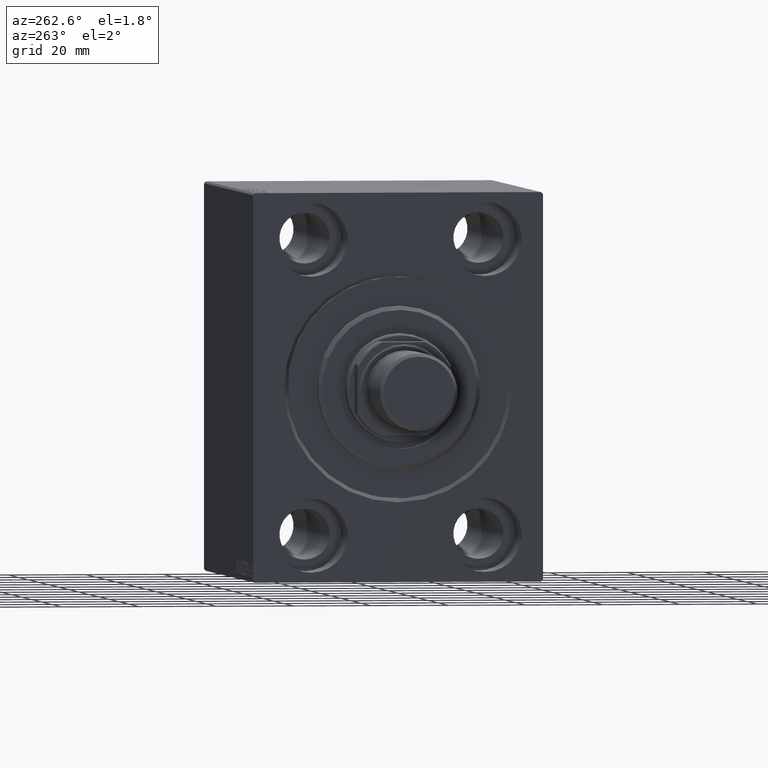
[diagram: clean part render]
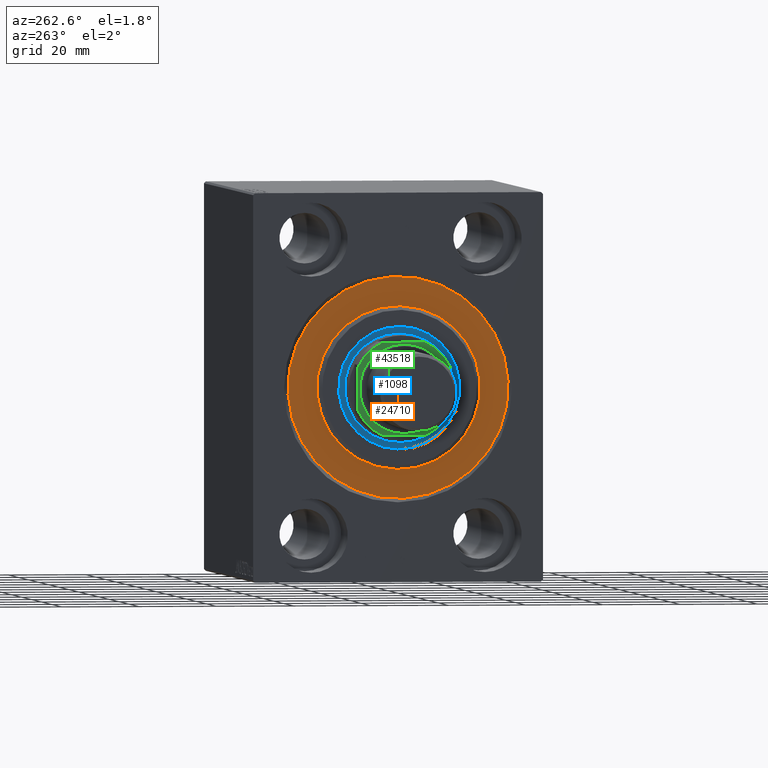
[diagram: same view with three faces highlighted in distinct colors, each labeled with its STEP entity id]
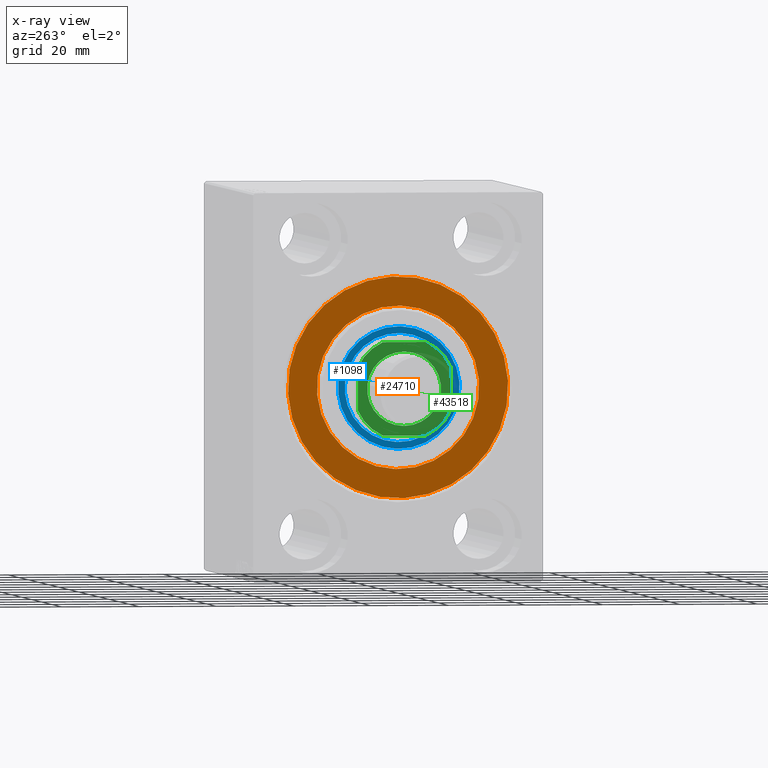
[diagram: x-ray of the same camera — body ghosted, the three highlighted faces saturated]
A machine part, auxiliary view with three faces highlighted in distinct colors.
The next image is the same camera in x-ray (body ghosted, the three faces saturated) — at least one of them is partly hidden behind the body in this view.
Their STEP definitions:

[orange] entity #24710 — the highlighted planar face has unit normal (1, 0, -0).
#1378 = ORIENTED_EDGE ( 'NONE', *, *, #22261, .F. ) ;
#1492 = CARTESIAN_POINT ( 'NONE',  ( 0.000000000000000000, 0.000000000000000000, 0.000000000000000000 ) ) ;
#1785 = CARTESIAN_POINT ( 'NONE',  ( 0.000000000000000000, 0.000000000000000000, 0.000000000000000000 ) ) ;
#3803 = DIRECTION ( 'NONE',  ( 1.000000000000000000, -0.000000000000000000, 0.000000000000000000 ) ) ;
#6787 = AXIS2_PLACEMENT_3D ( 'NONE', #22634, #22854, #22411 ) ;
#7388 = CARTESIAN_POINT ( 'NONE',  ( 0.000000000000000000, 3.490243377569956456E-15, 28.50000000000000000 ) ) ;
#8192 = FACE_OUTER_BOUND ( 'NONE', #35854, .T. ) ;
#9921 = VERTEX_POINT ( 'NONE', #31123 ) ;
#11169 = DIRECTION ( 'NONE',  ( 0.000000000000000000, 0.000000000000000000, 1.000000000000000000 ) ) ;
#11604 = AXIS2_PLACEMENT_3D ( 'NONE', #1785, #36140, #39264 ) ;
#12581 = CARTESIAN_POINT ( 'NONE',  ( 0.000000000000000000, 2.571758278209441661E-15, -21.00000000000000000 ) ) ;
#13809 = AXIS2_PLACEMENT_3D ( 'NONE', #17821, #3803, #20531 ) ;
#15079 = DIRECTION ( 'NONE',  ( -1.000000000000000000, 0.000000000000000000, 0.000000000000000000 ) ) ;
#17821 = CARTESIAN_POINT ( 'NONE',  ( 0.000000000000000000, 0.000000000000000000, 0.000000000000000000 ) ) ;
#18077 = ORIENTED_EDGE ( 'NONE', *, *, #24265, .F. ) ;
#18714 = EDGE_CURVE ( 'NONE', #42325, #39274, #41559, .T. ) ;
#18847 = CARTESIAN_POINT ( 'NONE',  ( 0.000000000000000000, 0.000000000000000000, -28.50000000000000000 ) ) ;
#20227 = AXIS2_PLACEMENT_3D ( 'NONE', #1492, #15079, #42315 ) ;
#20531 = DIRECTION ( 'NONE',  ( 0.000000000000000000, 0.000000000000000000, -1.000000000000000000 ) ) ;
#20887 = EDGE_LOOP ( 'NONE', ( #18077, #1378 ) ) ;
#22261 = EDGE_CURVE ( 'NONE', #25669, #9921, #28789, .T. ) ;
#22311 = AXIS2_PLACEMENT_3D ( 'NONE', #30578, #34371, #11169 ) ;
#22345 = CIRCLE ( 'NONE', #13809, 21.00000000000000000 ) ;
#22411 = DIRECTION ( 'NONE',  ( 0.000000000000000000, 0.000000000000000000, 1.000000000000000000 ) ) ;
#22634 = CARTESIAN_POINT ( 'NONE',  ( 0.000000000000000000, 0.000000000000000000, 0.000000000000000000 ) ) ;
#22854 = DIRECTION ( 'NONE',  ( -1.000000000000000000, 0.000000000000000000, 0.000000000000000000 ) ) ;
#24265 = EDGE_CURVE ( 'NONE', #9921, #25669, #22345, .T. ) ;
#24710 = ADVANCED_FACE ( 'NONE', ( #28907, #8192 ), #32023, .F. ) ;
#25669 = VERTEX_POINT ( 'NONE', #12581 ) ;
#27749 = EDGE_CURVE ( 'NONE', #39274, #42325, #43124, .T. ) ;
#28789 = CIRCLE ( 'NONE', #11604, 21.00000000000000000 ) ;
#28907 = FACE_BOUND ( 'NONE', #20887, .T. ) ;
#30578 = CARTESIAN_POINT ( 'NONE',  ( 0.000000000000000000, 0.000000000000000000, 0.000000000000000000 ) ) ;
#31123 = CARTESIAN_POINT ( 'NONE',  ( 0.000000000000000000, 0.000000000000000000, 21.00000000000000000 ) ) ;
#32023 = PLANE ( 'NONE',  #20227 ) ;
#32120 = ORIENTED_EDGE ( 'NONE', *, *, #18714, .F. ) ;
#34371 = DIRECTION ( 'NONE',  ( -1.000000000000000000, 0.000000000000000000, 0.000000000000000000 ) ) ;
#35854 = EDGE_LOOP ( 'NONE', ( #32120, #37057 ) ) ;
#36140 = DIRECTION ( 'NONE',  ( 1.000000000000000000, -0.000000000000000000, 0.000000000000000000 ) ) ;
#37057 = ORIENTED_EDGE ( 'NONE', *, *, #27749, .F. ) ;
#39264 = DIRECTION ( 'NONE',  ( 0.000000000000000000, 0.000000000000000000, -1.000000000000000000 ) ) ;
#39274 = VERTEX_POINT ( 'NONE', #7388 ) ;
#41559 = CIRCLE ( 'NONE', #22311, 28.50000000000000000 ) ;
#42315 = DIRECTION ( 'NONE',  ( 0.000000000000000000, 0.000000000000000000, 1.000000000000000000 ) ) ;
#42325 = VERTEX_POINT ( 'NONE', #18847 ) ;
#43124 = CIRCLE ( 'NONE', #6787, 28.50000000000000000 ) ;

[blue] entity #1098 — the highlighted planar face has unit normal (-1, 0, 0).
#1098 = ADVANCED_FACE ( 'NONE', ( #12609, #25765 ), #43619, .T. ) ;
#1303 = DIRECTION ( 'NONE',  ( 1.000000000000000000, 0.000000000000000000, 0.000000000000000000 ) ) ;
#1829 = CARTESIAN_POINT ( 'NONE',  ( 1.500000000000000000, 0.000000000000000000, 0.000000000000000000 ) ) ;
#2354 = DIRECTION ( 'NONE',  ( 0.000000000000000000, 0.000000000000000000, -1.000000000000000000 ) ) ;
#2974 = CARTESIAN_POINT ( 'NONE',  ( 1.500000000000000000, 1.928818708657080950E-15, -15.75000000000000000 ) ) ;
#3407 = AXIS2_PLACEMENT_3D ( 'NONE', #1829, #25463, #18989 ) ;
#3891 = AXIS2_PLACEMENT_3D ( 'NONE', #8479, #12261, #18502 ) ;
#5127 = ORIENTED_EDGE ( 'NONE', *, *, #6157, .F. ) ;
#6157 = EDGE_CURVE ( 'NONE', #23627, #32171, #21994, .T. ) ;
#7175 = DIRECTION ( 'NONE',  ( 0.000000000000000000, 0.000000000000000000, -1.000000000000000000 ) ) ;
#8271 = EDGE_LOOP ( 'NONE', ( #16864, #18118 ) ) ;
#8479 = CARTESIAN_POINT ( 'NONE',  ( 1.499999999999999556, 0.000000000000000000, 0.000000000000000000 ) ) ;
#10737 = CARTESIAN_POINT ( 'NONE',  ( 1.499999999999999556, 1.714505518806294835E-15, 14.00000000000000178 ) ) ;
#11163 = CIRCLE ( 'NONE', #36114, 15.75000000000000000 ) ;
#11397 = EDGE_LOOP ( 'NONE', ( #5127, #37168 ) ) ;
#12261 = DIRECTION ( 'NONE',  ( 1.000000000000000000, 0.000000000000000000, 0.000000000000000000 ) ) ;
#12609 = FACE_BOUND ( 'NONE', #11397, .T. ) ;
#13748 = CIRCLE ( 'NONE', #3891, 14.00000000000000178 ) ;
#14887 = DIRECTION ( 'NONE',  ( 0.000000000000000000, 0.000000000000000000, -1.000000000000000000 ) ) ;
#16864 = ORIENTED_EDGE ( 'NONE', *, *, #32521, .T. ) ;
#17734 = AXIS2_PLACEMENT_3D ( 'NONE', #17851, #20998, #7175 ) ;
#17851 = CARTESIAN_POINT ( 'NONE',  ( 1.499999999999999556, 0.000000000000000000, 0.000000000000000000 ) ) ;
#18118 = ORIENTED_EDGE ( 'NONE', *, *, #34536, .T. ) ;
#18502 = DIRECTION ( 'NONE',  ( 0.000000000000000000, 0.000000000000000000, -1.000000000000000000 ) ) ;
#18989 = DIRECTION ( 'NONE',  ( 0.000000000000000000, 0.000000000000000000, -1.000000000000000000 ) ) ;
#19295 = CARTESIAN_POINT ( 'NONE',  ( 1.500000000000000000, 0.000000000000000000, 0.000000000000000000 ) ) ;
#20998 = DIRECTION ( 'NONE',  ( 1.000000000000000000, 0.000000000000000000, 0.000000000000000000 ) ) ;
#21994 = CIRCLE ( 'NONE', #17734, 14.00000000000000178 ) ;
#22244 = EDGE_CURVE ( 'NONE', #32171, #23627, #13748, .T. ) ;
#23627 = VERTEX_POINT ( 'NONE', #36513 ) ;
#25463 = DIRECTION ( 'NONE',  ( 1.000000000000000000, 0.000000000000000000, 0.000000000000000000 ) ) ;
#25765 = FACE_OUTER_BOUND ( 'NONE', #8271, .T. ) ;
#29984 = DIRECTION ( 'NONE',  ( 1.000000000000000000, 0.000000000000000000, 0.000000000000000000 ) ) ;
#32171 = VERTEX_POINT ( 'NONE', #10737 ) ;
#32474 = AXIS2_PLACEMENT_3D ( 'NONE', #19295, #29984, #2354 ) ;
#32521 = EDGE_CURVE ( 'NONE', #34355, #43549, #11163, .T. ) ;
#34355 = VERTEX_POINT ( 'NONE', #44027 ) ;
#34536 = EDGE_CURVE ( 'NONE', #43549, #34355, #41142, .T. ) ;
#36114 = AXIS2_PLACEMENT_3D ( 'NONE', #41692, #1303, #14887 ) ;
#36513 = CARTESIAN_POINT ( 'NONE',  ( 1.499999999999999556, 0.000000000000000000, -14.00000000000000178 ) ) ;
#37168 = ORIENTED_EDGE ( 'NONE', *, *, #22244, .F. ) ;
#41142 = CIRCLE ( 'NONE', #3407, 15.75000000000000000 ) ;
#41692 = CARTESIAN_POINT ( 'NONE',  ( 1.500000000000000000, 0.000000000000000000, 0.000000000000000000 ) ) ;
#43549 = VERTEX_POINT ( 'NONE', #2974 ) ;
#43619 = PLANE ( 'NONE',  #32474 ) ;
#44027 = CARTESIAN_POINT ( 'NONE',  ( 1.500000000000000000, 0.000000000000000000, 15.75000000000000000 ) ) ;

[green] entity #43518 — the highlighted planar face has unit normal (-1, 0, 0).
#673 = AXIS2_PLACEMENT_3D ( 'NONE', #33848, #44120, #3300 ) ;
#762 = CARTESIAN_POINT ( 'NONE',  ( 0.000000000000000000, 0.000000000000000000, 96.00000000000000000 ) ) ;
#1604 = AXIS2_PLACEMENT_3D ( 'NONE', #762, #27736, #27515 ) ;
#2307 = FACE_BOUND ( 'NONE', #43384, .T. ) ;
#2923 = DIRECTION ( 'NONE',  ( 1.000000000000000000, 0.000000000000000000, 0.000000000000000000 ) ) ;
#3089 = VERTEX_POINT ( 'NONE', #27807 ) ;
#3300 = DIRECTION ( 'NONE',  ( 1.000000000000000000, 0.000000000000000000, 0.000000000000000000 ) ) ;
#3689 = CARTESIAN_POINT ( 'NONE',  ( -9.549999999999988276, 1.169537693185720980E-15, 96.00000000000000000 ) ) ;
#3935 = EDGE_CURVE ( 'NONE', #33789, #23205, #30939, .T. ) ;
#4563 = VERTEX_POINT ( 'NONE', #23261 ) ;
#5435 = PLANE ( 'NONE',  #22971 ) ;
#5437 = DIRECTION ( 'NONE',  ( 1.000000000000000000, 0.000000000000000000, 0.000000000000000000 ) ) ;
#5654 = FACE_OUTER_BOUND ( 'NONE', #11852, .T. ) ;
#6475 = VECTOR ( 'NONE', #5437, 1000.000000000000000 ) ;
#7272 = EDGE_CURVE ( 'NONE', #23686, #29244, #17067, .T. ) ;
#7762 = CARTESIAN_POINT ( 'NONE',  ( -12.00000000000000355, 11.99999999999999645, 96.00000000000000000 ) ) ;
#8004 = CIRCLE ( 'NONE', #1604, 9.549999999999988276 ) ;
#8534 = ORIENTED_EDGE ( 'NONE', *, *, #14989, .T. ) ;
#10152 = CARTESIAN_POINT ( 'NONE',  ( 5.499090833947025914, -12.00000000000000355, 96.00000000000000000 ) ) ;
#11160 = EDGE_CURVE ( 'NONE', #4563, #36189, #15456, .T. ) ;
#11226 = VECTOR ( 'NONE', #19440, 1000.000000000000000 ) ;
#11852 = EDGE_LOOP ( 'NONE', ( #42097, #8534, #33325, #17130, #15644, #28940, #32101, #33748 ) ) ;
#11906 = DIRECTION ( 'NONE',  ( -0.000000000000000000, 0.000000000000000000, 1.000000000000000000 ) ) ;
#12117 = CARTESIAN_POINT ( 'NONE',  ( -11.99999999999999822, -12.00000000000000355, 96.00000000000000000 ) ) ;
#13069 = DIRECTION ( 'NONE',  ( -2.168404344971008868E-16, 1.000000000000000000, -0.000000000000000000 ) ) ;
#13282 = CARTESIAN_POINT ( 'NONE',  ( 11.99999999999999645, 11.99999999999999645, 96.00000000000000000 ) ) ;
#14974 = CARTESIAN_POINT ( 'NONE',  ( -12.00000000000000178, 5.499090833947057000, 96.00000000000000000 ) ) ;
#14989 = EDGE_CURVE ( 'NONE', #3089, #33789, #41494, .T. ) ;
#15456 = LINE ( 'NONE', #12117, #6475 ) ;
#15644 = ORIENTED_EDGE ( 'NONE', *, *, #34700, .T. ) ;
#15684 = CARTESIAN_POINT ( 'NONE',  ( 0.000000000000000000, 0.000000000000000000, 96.00000000000000000 ) ) ;
#15903 = DIRECTION ( 'NONE',  ( 1.000000000000000000, 0.000000000000000000, 0.000000000000000000 ) ) ;
#16921 = AXIS2_PLACEMENT_3D ( 'NONE', #35952, #21879, #39077 ) ;
#17067 = CIRCLE ( 'NONE', #673, 9.549999999999988276 ) ;
#17130 = ORIENTED_EDGE ( 'NONE', *, *, #38417, .T. ) ;
#17784 = CARTESIAN_POINT ( 'NONE',  ( 0.000000000000000000, 0.000000000000000000, 96.00000000000000000 ) ) ;
#18608 = VERTEX_POINT ( 'NONE', #23464 ) ;
#19124 = VECTOR ( 'NONE', #13069, 1000.000000000000000 ) ;
#19249 = CARTESIAN_POINT ( 'NONE',  ( 0.000000000000000000, 0.000000000000000000, 96.00000000000000000 ) ) ;
#19364 = ORIENTED_EDGE ( 'NONE', *, *, #43259, .T. ) ;
#19440 = DIRECTION ( 'NONE',  ( 2.168404344971008868E-16, -1.000000000000000000, 0.000000000000000000 ) ) ;
#20087 = CARTESIAN_POINT ( 'NONE',  ( -12.00000000000000000, -5.499090833947057888, 96.00000000000000000 ) ) ;
#21872 = CIRCLE ( 'NONE', #30450, 13.20000000000002238 ) ;
#21879 = DIRECTION ( 'NONE',  ( -0.000000000000000000, 0.000000000000000000, 1.000000000000000000 ) ) ;
#22247 = AXIS2_PLACEMENT_3D ( 'NONE', #15684, #11906, #33080 ) ;
#22971 = AXIS2_PLACEMENT_3D ( 'NONE', #19249, #32841, #15903 ) ;
#23205 = VERTEX_POINT ( 'NONE', #41315 ) ;
#23261 = CARTESIAN_POINT ( 'NONE',  ( -5.499090833947052559, -12.00000000000000355, 96.00000000000000000 ) ) ;
#23379 = VERTEX_POINT ( 'NONE', #20087 ) ;
#23428 = VECTOR ( 'NONE', #41669, 1000.000000000000000 ) ;
#23464 = CARTESIAN_POINT ( 'NONE',  ( 12.00000000000000000, -5.499090833947034795, 96.00000000000000000 ) ) ;
#23686 = VERTEX_POINT ( 'NONE', #3689 ) ;
#27137 = CIRCLE ( 'NONE', #32110, 13.20000000000000995 ) ;
#27515 = DIRECTION ( 'NONE',  ( 1.000000000000000000, 0.000000000000000000, 0.000000000000000000 ) ) ;
#27736 = DIRECTION ( 'NONE',  ( 0.000000000000000000, -0.000000000000000000, -1.000000000000000000 ) ) ;
#27807 = CARTESIAN_POINT ( 'NONE',  ( 11.99999999999999645, 5.499090833947039236, 96.00000000000000000 ) ) ;
#28040 = DIRECTION ( 'NONE',  ( -0.000000000000000000, 0.000000000000000000, 1.000000000000000000 ) ) ;
#28940 = ORIENTED_EDGE ( 'NONE', *, *, #37777, .T. ) ;
#29244 = VERTEX_POINT ( 'NONE', #36964 ) ;
#29721 = CIRCLE ( 'NONE', #16921, 13.20000000000002238 ) ;
#30127 = CARTESIAN_POINT ( 'NONE',  ( -12.00000000000000355, 11.99999999999999645, 96.00000000000000000 ) ) ;
#30450 = AXIS2_PLACEMENT_3D ( 'NONE', #39741, #43747, #2923 ) ;
#30939 = LINE ( 'NONE', #7762, #23428 ) ;
#32101 = ORIENTED_EDGE ( 'NONE', *, *, #11160, .T. ) ;
#32110 = AXIS2_PLACEMENT_3D ( 'NONE', #17784, #28040, #34743 ) ;
#32841 = DIRECTION ( 'NONE',  ( -0.000000000000000000, 0.000000000000000000, 1.000000000000000000 ) ) ;
#33080 = DIRECTION ( 'NONE',  ( 1.000000000000000000, 0.000000000000000000, 0.000000000000000000 ) ) ;
#33325 = ORIENTED_EDGE ( 'NONE', *, *, #3935, .T. ) ;
#33748 = ORIENTED_EDGE ( 'NONE', *, *, #39604, .T. ) ;
#33789 = VERTEX_POINT ( 'NONE', #41923 ) ;
#33848 = CARTESIAN_POINT ( 'NONE',  ( 0.000000000000000000, 0.000000000000000000, 96.00000000000000000 ) ) ;
#34012 = LINE ( 'NONE', #13282, #19124 ) ;
#34700 = EDGE_CURVE ( 'NONE', #39087, #23379, #43977, .T. ) ;
#34743 = DIRECTION ( 'NONE',  ( 1.000000000000000000, 0.000000000000000000, 0.000000000000000000 ) ) ;
#35952 = CARTESIAN_POINT ( 'NONE',  ( 0.000000000000000000, 0.000000000000000000, 96.00000000000000000 ) ) ;
#36189 = VERTEX_POINT ( 'NONE', #10152 ) ;
#36916 = ORIENTED_EDGE ( 'NONE', *, *, #7272, .T. ) ;
#36964 = CARTESIAN_POINT ( 'NONE',  ( 9.549999999999988276, 0.000000000000000000, 96.00000000000000000 ) ) ;
#37076 = EDGE_CURVE ( 'NONE', #18608, #3089, #34012, .T. ) ;
#37777 = EDGE_CURVE ( 'NONE', #23379, #4563, #21872, .T. ) ;
#38417 = EDGE_CURVE ( 'NONE', #23205, #39087, #29721, .T. ) ;
#39077 = DIRECTION ( 'NONE',  ( 1.000000000000000000, 0.000000000000000000, 0.000000000000000000 ) ) ;
#39087 = VERTEX_POINT ( 'NONE', #14974 ) ;
#39604 = EDGE_CURVE ( 'NONE', #36189, #18608, #27137, .T. ) ;
#39741 = CARTESIAN_POINT ( 'NONE',  ( 0.000000000000000000, 0.000000000000000000, 96.00000000000000000 ) ) ;
#41315 = CARTESIAN_POINT ( 'NONE',  ( -5.499090833947067658, 11.99999999999999645, 96.00000000000000000 ) ) ;
#41494 = CIRCLE ( 'NONE', #22247, 13.20000000000000995 ) ;
#41669 = DIRECTION ( 'NONE',  ( -1.000000000000000000, -0.000000000000000000, -0.000000000000000000 ) ) ;
#41923 = CARTESIAN_POINT ( 'NONE',  ( 5.499090833947041901, 11.99999999999999645, 96.00000000000000000 ) ) ;
#42097 = ORIENTED_EDGE ( 'NONE', *, *, #37076, .T. ) ;
#43259 = EDGE_CURVE ( 'NONE', #29244, #23686, #8004, .T. ) ;
#43384 = EDGE_LOOP ( 'NONE', ( #19364, #36916 ) ) ;
#43518 = ADVANCED_FACE ( 'NONE', ( #2307, #5654 ), #5435, .T. ) ;
#43747 = DIRECTION ( 'NONE',  ( -0.000000000000000000, 0.000000000000000000, 1.000000000000000000 ) ) ;
#43977 = LINE ( 'NONE', #30127, #11226 ) ;
#44120 = DIRECTION ( 'NONE',  ( 0.000000000000000000, -0.000000000000000000, -1.000000000000000000 ) ) ;